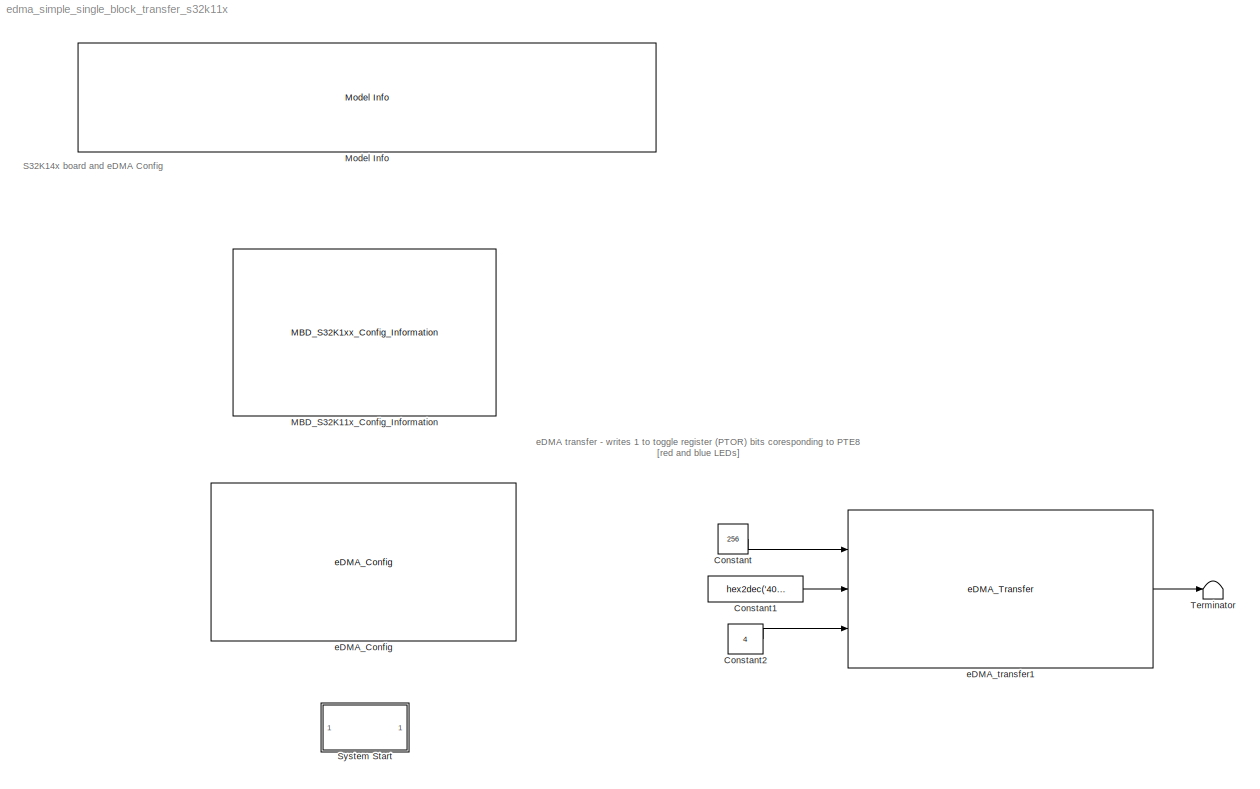
MODEL edma_simple_single_block_transfer_s32k11x
KIND model
CONFIG InitFcn = mbd_s32k_consistency_checks(bdroot(gcs));
BLOCK [Constant] Constant
  OutDataTypeStr = uint32
  SID = 16
  Value = 256
BLOCK [Constant] Constant1
  OutDataTypeStr = uint32
  SID = 17
  Value = hex2dec('400FF10C')
BLOCK [Constant] Constant2
  OutDataTypeStr = uint32
  SID = 18
  Value = 4
BLOCK [Reference] MBD_S32K11x_Config_Information  REF=mbd_s32k1xx_ec_toolbox/MBD_S32K1xx_Config_Information
  ADC_PcrCheckEnDis = on
  AMMCLIB_PcrCheckEnDis = on
  CMP_PcrCheckEnDis = on
  CSEc_PcrCheckEnDis = on
  ConfigParams_PcrCheckEnDis = on
  FM_PcrCheckEnDis = on
  FTM_Dual_Edge_Inputs_PcrCheckEnDis = on
  FTM_Hall_Sensor_Inputs_PcrCheckEnDis = on
  FTM_Input_Edge_Inputs_PcrCheckEnDis = on
  FTM_PWM_PcrCheckEnDis = on
  FTM_Quadrature_Inputs_PcrCheckEnDis = on
  FlexCAN_PcrCheckEnDis = on
  FlexIO_PcrCheckEnDis = on
  GPIO_InputPcrCheckEnDis = on
  GPIO_OutputPcrCheckEnDis = on
  LIN_PcrCheckEnDis = on
  LPI2C_PcrCheckEnDis = on
  LPSPI_PcrCheckEnDis = on
  LPTMR_PcrCheckEnDis = on
  LPUART_PcrCheckEnDis = on
  ModelRef_PcrCheckEnDis = on
  PDB0_PcrCheckEnDis = on
  PIT_PcrCheckEnDis = on
  Ports = []
  Profile_PcrCheckEnDis = on
  RTC_PcrCheckEnDis = on
  SBC_PcrCheckEnDis = on
  SID = 25
  SourceBlock = mbd_s32k1xx_ec_toolbox/MBD_S32K1xx_Config_Information
  SourceType = MBDTBX_EC_S32K
  WDOG_PcrCheckEnDis = on
  config_params = []
  disp_str = Target : S32K144-64KB_SRAM\nPackage : 100-pin\nSystem clock : 80 MHz\nXTAL clock : External 8 MHz\nCompiler : IAR\nTarget Type : FLASH\nDownload Code after build : off\nStep Tick Interrupt Priority : 15
  ds_import_enable = on
  eDMA_PcrCheckEnDis = on
  gcc_target_assemble_opts = -mcpu=cortex-m0plus -mthumb -g
  gcc_target_compile_opts = -mcpu=cortex-m0plus -mthumb -O1 -g -gstrict-dwarf
  gcc_target_default_lcf = on
  gcc_target_link_opts = -mcpu=cortex-m0plus -mthumb
  gcc_target_user_lcf = S32K116_17_flash.ld
  ghs_target_assemble_opts = -mcpu=cortexm0plus -mthumb -fsoft --gnu_asm
  ghs_target_compile_opts = -mcpu=cortexm0plus -mthumb -fsoft -Ogeneral -Wundef -Wimplicit-int -Wshadow -Wtrigraphs --no_commons --gnu_asm -gnu99 -gdwarf-2 -G
  ghs_target_default_lcf = on
  ghs_target_link_opts = -mcpu=cortexm0plus -mthumb -fsoft
  ghs_target_user_lcf = S32K116_17_flash.ld
  iar_target_assemble_opts = --thumb
  iar_target_compile_opts = --thumb -Ol -e --debug --dlib_config normal
  iar_target_default_lcf = on
  iar_target_link_opts = --no_exceptions --vfe --inline
  iar_target_user_lcf = S32K116_17_flash.icf
  mbdt_ver = 0
  mcu_steptick_prio = 3
  mcu_steptick_timer = LPIT Channel 0
  mcu_system_clock_freq = 40
  mcu_target_name = S32K116
  mcu_target_package = 48-LQFP
  mcu_target_sram_size = 17KB
  mcu_xtal_freq = External 40
  pil_download_enable = off
  pil_download_rate = 57600
  pil_opensda_drive = Custom
  pil_opensda_drive_custom = D
  pil_uart_instance = 0
  pil_uart_rx = PTA2: [LPUART0_RX | Receive]
  pil_uart_tx = PTA3: [LPUART0_TX | Transmit]
  rbl_com_port = Custom
  rbl_com_port_custom = COM1
  rbl_download_enable = on
  rbl_download_interface = OpenSDA
  rbl_restart_request = off
  rbl_start_delay = 5000
  target_compiler = GCC
  target_memory = FLASH
BLOCK [Reference] Model Info  REF=simulink/Model-Wide\nUtilities/Model Info
  DisplayStringWithTags = Model Name: %<ModelName>\n\nDescription: %<Description>
  Frame = off
  HorizontalTextAlignment = Left
  LeftAlignmentValue = 0.02
  MaskDisplayString = Model Name: edma_simple_single_block_transfer_s32k11x\\n\\nDescription: Transfer data via edma to PTOR register - write 1 on bit 8, coresponding \\nto PTE (blue LED).\\n\\nVerification: \\nThe blue LED should blink
  Ports = []
  SID = 24
  SourceBlock = simulink/Model-Wide\nUtilities/Model Info
  SourceProductBaseCode = SL
  SourceProductName = Simulink
  SourceType = CMBlock
BLOCK [SubSystem] System Start
  CopyFcn = cccopyfcn(gcb)
  OpenFcn = ccopenfcn('System Start Function')
  Ports = []
  RequestExecContextInheritance = off
  SID = 15
  Variant = off
BLOCK [Terminator] Terminator
  SID = 19
BLOCK [Reference] eDMA_Config  REF=mbd_s32k1xx_ec_toolbox/Core and System Blocks/DMA Blocks/eDMA_Config
  Ports = []
  Priority = 1
  SID = 1
  SourceBlock = mbd_s32k1xx_ec_toolbox/Core and System Blocks/DMA Blocks/eDMA_Config
  SourceType = edma_s32k_config
  arbitration = EDMA_ARBITRATION_FIXED_PRIORITY
  channel = 0
  channel0enable = on
  channel0priority = EDMA_CHN_PRIORITY_0
  channel0requestsource = EDMA_REQ_DISABLED
  channel10enable = off
  channel10priority = EDMA_CHN_DEFAULT_PRIORITY
  channel10requestsource = EDMA_REQ_DISABLED
  channel11enable = off
  channel11priority = EDMA_CHN_DEFAULT_PRIORITY
  channel11requestsource = EDMA_REQ_DISABLED
  channel12enable = off
  channel12priority = EDMA_CHN_DEFAULT_PRIORITY
  channel12requestsource = EDMA_REQ_DISABLED
  channel13enable = off
  channel13priority = EDMA_CHN_DEFAULT_PRIORITY
  channel13requestsource = EDMA_REQ_DISABLED
  channel14enable = off
  channel14priority = EDMA_CHN_DEFAULT_PRIORITY
  channel14requestsource = EDMA_REQ_DISABLED
  channel15enable = off
  channel15priority = EDMA_CHN_DEFAULT_PRIORITY
  channel15requestsource = EDMA_REQ_DISABLED
  channel1enable = off
  channel1priority = EDMA_CHN_DEFAULT_PRIORITY
  channel1requestsource = EDMA_REQ_DISABLED
  channel2enable = off
  channel2priority = EDMA_CHN_DEFAULT_PRIORITY
  channel2requestsource = EDMA_REQ_DISABLED
  channel3enable = off
  channel3priority = EDMA_CHN_DEFAULT_PRIORITY
  channel3requestsource = EDMA_REQ_DISABLED
  channel4enable = off
  channel4priority = EDMA_CHN_DEFAULT_PRIORITY
  channel4requestsource = EDMA_REQ_DISABLED
  channel5enable = off
  channel5priority = EDMA_CHN_DEFAULT_PRIORITY
  channel5requestsource = EDMA_REQ_DISABLED
  channel6enable = off
  channel6priority = EDMA_CHN_DEFAULT_PRIORITY
  channel6requestsource = EDMA_REQ_DISABLED
  channel7enable = off
  channel7priority = EDMA_CHN_DEFAULT_PRIORITY
  channel7requestsource = EDMA_REQ_DISABLED
  channel8enable = off
  channel8priority = EDMA_CHN_DEFAULT_PRIORITY
  channel8requestsource = EDMA_REQ_DISABLED
  channel9enable = off
  channel9priority = EDMA_CHN_DEFAULT_PRIORITY
  channel9requestsource = EDMA_REQ_DISABLED
  channel_advanced_checkbox = on
  halt_on_error = false
  show_advanced_tab = on
  show_enabled = on
BLOCK [Reference] eDMA_transfer1  REF=mbd_s32k1xx_ec_toolbox/Core and System Blocks/DMA Blocks/eDMA_Transfer
  Ports = [3, 1]
  Priority = 2
  SID = 14
  SourceBlock = mbd_s32k1xx_ec_toolbox/Core and System Blocks/DMA Blocks/eDMA_Transfer
  SourceType = edma_s32k_transfer
  bytes_on_each_req = 4
  channel = 0
  dest_list = {PTD_BASE + 0xc, 0x400FF0CC}
  dest_list_type = Address list
  dest_periph1 = ADC0
  dest_periph2 = ADC0
  dest_periph3 = ADC0
  dest_periph4 = ADC0
  dest_periph5 = ADC0
  dest_periph6 = ADC0
  dest_periph7 = ADC0
  dest_periph8 = ADC0
  dest_reg1 = SC1A
  dest_reg1_addr = 0x4003B000
  dest_reg1enable = off
  dest_reg1offset = 0
  dest_reg2 = SC1A
  dest_reg2_addr = 0x4003B000
  dest_reg2enable = off
  dest_reg2offset = 0
  dest_reg3 = SC1A
  dest_reg3_addr = 0x4003B000
  dest_reg3enable = off
  dest_reg3offset = 0
  dest_reg4 = SC1A
  dest_reg4_addr = 0x4003B000
  dest_reg4enable = off
  dest_reg4offset = 0
  dest_reg5 = SC1A
  dest_reg5_addr = 0x4003B000
  dest_reg5enable = off
  dest_reg5offset = 0
  dest_reg6 = SC1A
  dest_reg6_addr = 0x4003B000
  dest_reg6enable = off
  dest_reg6offset = 0
  dest_reg7 = SC1A
  dest_reg7_addr = 0x4003B000
  dest_reg7enable = off
  dest_reg7offset = 0
  dest_reg8 = SC1A
  dest_reg8_addr = 0x4003B000
  dest_reg8enable = off
  dest_reg8offset = 0
  sg_struct_size = 32
  single_block_dest_type = Dest input is an address
  single_block_src_type = Src input is a variable (data)
  src_list = {32768, 1}
  src_list_type = Value list
  src_periph1 = ADC0
  src_periph2 = ADC0
  src_periph3 = ADC0
  src_periph4 = ADC0
  src_periph5 = ADC0
  src_periph6 = ADC0
  src_periph7 = ADC0
  src_periph8 = ADC0
  src_reg1 = SC1A
  src_reg1_addr = 0x4003B000
  src_reg1enable = off
  src_reg1offset = 0
  src_reg2 = SC1A
  src_reg2_addr = 0x4003B000
  src_reg2enable = off
  src_reg2offset = 0
  src_reg3 = SC1A
  src_reg3_addr = 0x4003B000
  src_reg3enable = off
  src_reg3offset = 0
  src_reg4 = SC1A
  src_reg4_addr = 0x4003B000
  src_reg4enable = off
  src_reg4offset = 0
  src_reg5 = SC1A
  src_reg5_addr = 0x4003B000
  src_reg5enable = off
  src_reg5offset = 0
  src_reg6 = SC1A
  src_reg6_addr = 0x4003B000
  src_reg6enable = off
  src_reg6offset = 0
  src_reg7 = SC1A
  src_reg7_addr = 0x4003B000
  src_reg7enable = off
  src_reg7offset = 0
  src_reg8 = SC1A
  src_reg8_addr = 0x4003B000
  src_reg8enable = off
  src_reg8offset = 0
  transfer_mode = Single Block Transfer
  transfer_size = EDMA_TRANSFER_SIZE_4B
  transfer_type = EDMA_TRANSFER_MEM2PERIPH
ANNOTATION (root): S32K14x board and eDMA Config
ANNOTATION (root): eDMA transfer - writes 1 to toggle register (PTOR) bits coresponding to PTE8\n [red and blue LEDs]
LINE Constant1:1 -> eDMA_transfer1:2
LINE Constant2:1 -> eDMA_transfer1:3
LINE Constant:1 -> eDMA_transfer1:1
LINE eDMA_transfer1:1 -> Terminator:1
